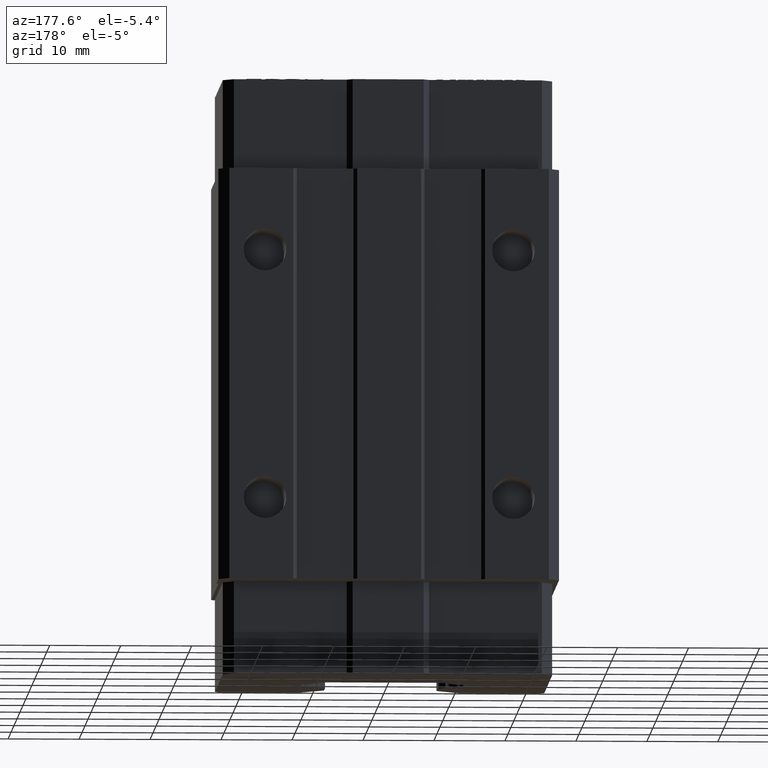
[diagram: clean part render]
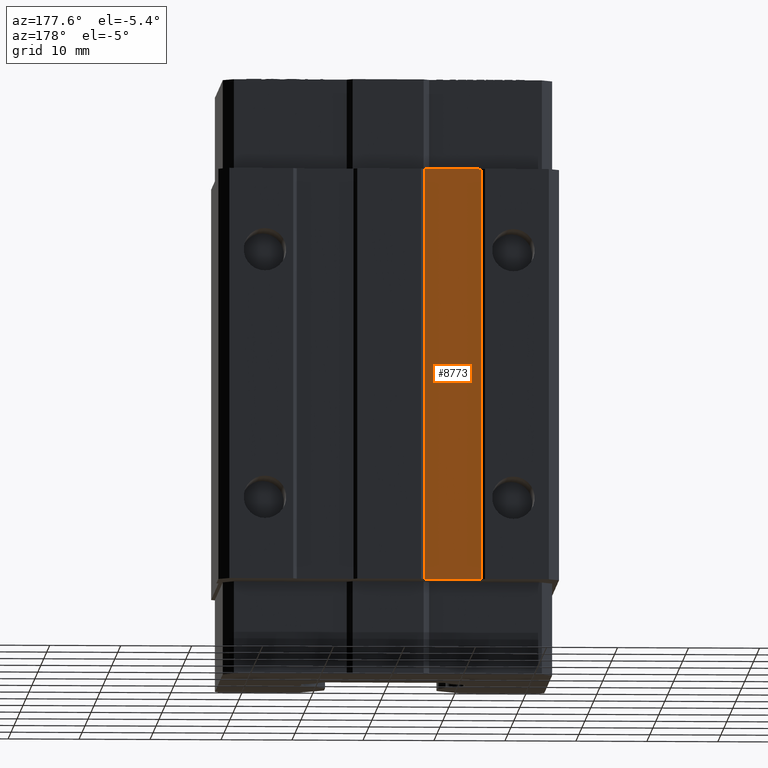
[diagram: same view with one face highlighted and labeled with its STEP entity id]
A machine part, auxiliary view. The second image highlights one B-rep face of the part: STEP entity #8773.
In plain terms, the highlighted planar face has unit normal (0, 1, 0).
Its self-contained STEP definition (entity closure, byte-faithful):
#386 = CARTESIAN_POINT ( 'NONE',  ( -5.000000000000000900, 17.50000000000000000, 29.00000000000001400 ) ) ;
#387 = DIRECTION ( 'NONE',  ( 0.0000000000000000000, 0.0000000000000000000, -1.000000000000000000 ) ) ;
#388 = VECTOR ( 'NONE', #387, 1000.000000000000000 ) ;
#389 = CARTESIAN_POINT ( 'NONE',  ( -5.000000000000000000, 17.50000000000000000, -29.00000000000000000 ) ) ;
#390 = LINE ( 'NONE', #389, #388 ) ;
#536 = CARTESIAN_POINT ( 'NONE',  ( -13.00000000000000200, 17.50000000000000000, 29.00000000000002100 ) ) ;
#537 = CARTESIAN_POINT ( 'NONE',  ( -13.00000000000000200, 17.50000000000000000, -29.00000000000000000 ) ) ;
#538 = DIRECTION ( 'NONE',  ( 0.0000000000000000000, 0.0000000000000000000, 1.000000000000000000 ) ) ;
#539 = VECTOR ( 'NONE', #538, 1000.000000000000000 ) ;
#540 = CARTESIAN_POINT ( 'NONE',  ( -13.00000000000000200, 17.50000000000000000, -29.00000000000000000 ) ) ;
#541 = LINE ( 'NONE', #540, #539 ) ;
#562 = CARTESIAN_POINT ( 'NONE',  ( -5.000000000000000900, 17.50000000000000000, -29.00000000000000000 ) ) ;
#1982 = DIRECTION ( 'NONE',  ( -1.000000000000000000, 0.0000000000000000000, 0.0000000000000000000 ) ) ;
#1983 = VECTOR ( 'NONE', #1982, 1000.000000000000000 ) ;
#1984 = CARTESIAN_POINT ( 'NONE',  ( 0.0000000000000000000, 17.50000000000000000, 29.00000000000000000 ) ) ;
#1985 = LINE ( 'NONE', #1984, #1983 ) ;
#1986 = DIRECTION ( 'NONE',  ( -1.000000000000000000, 0.0000000000000000000, 0.0000000000000000000 ) ) ;
#1987 = VECTOR ( 'NONE', #1986, 1000.000000000000000 ) ;
#1988 = CARTESIAN_POINT ( 'NONE',  ( 0.0000000000000000000, 17.50000000000000000, -29.00000000000000000 ) ) ;
#1989 = LINE ( 'NONE', #1988, #1987 ) ;
#2073 = DIRECTION ( 'NONE',  ( 0.0000000000000000000, 0.0000000000000000000, 1.000000000000000000 ) ) ;
#2074 = DIRECTION ( 'NONE',  ( 0.0000000000000000000, 1.000000000000000000, 0.0000000000000000000 ) ) ;
#2075 = CARTESIAN_POINT ( 'NONE',  ( -5.000000000000000000, 17.50000000000000000, -29.00000000000000000 ) ) ;
#2076 = AXIS2_PLACEMENT_3D ( 'NONE', #2075, #2074, #2073 ) ;
#2077 = PLANE ( 'NONE',  #2076 ) ;
#2078 = FACE_OUTER_BOUND ( 'NONE', #8695, .T. ) ;
#7914 = EDGE_CURVE ( 'NONE', #7915, #7994, #390, .T. ) ;
#7915 = VERTEX_POINT ( 'NONE', #386 ) ;
#7973 = EDGE_CURVE ( 'NONE', #7974, #7975, #541, .T. ) ;
#7974 = VERTEX_POINT ( 'NONE', #537 ) ;
#7975 = VERTEX_POINT ( 'NONE', #536 ) ;
#7994 = VERTEX_POINT ( 'NONE', #562 ) ;
#8695 = EDGE_LOOP ( 'NONE', ( #8696, #8697, #8699, #8700 ) ) ;
#8696 = ORIENTED_EDGE ( 'NONE', *, *, #7914, .T. ) ;
#8697 = ORIENTED_EDGE ( 'NONE', *, *, #8698, .T. ) ;
#8698 = EDGE_CURVE ( 'NONE', #7994, #7974, #1989, .T. ) ;
#8699 = ORIENTED_EDGE ( 'NONE', *, *, #7973, .T. ) ;
#8700 = ORIENTED_EDGE ( 'NONE', *, *, #8701, .F. ) ;
#8701 = EDGE_CURVE ( 'NONE', #7915, #7975, #1985, .T. ) ;
#8773 = ADVANCED_FACE ( 'NONE', ( #2078 ), #2077, .T. ) ;